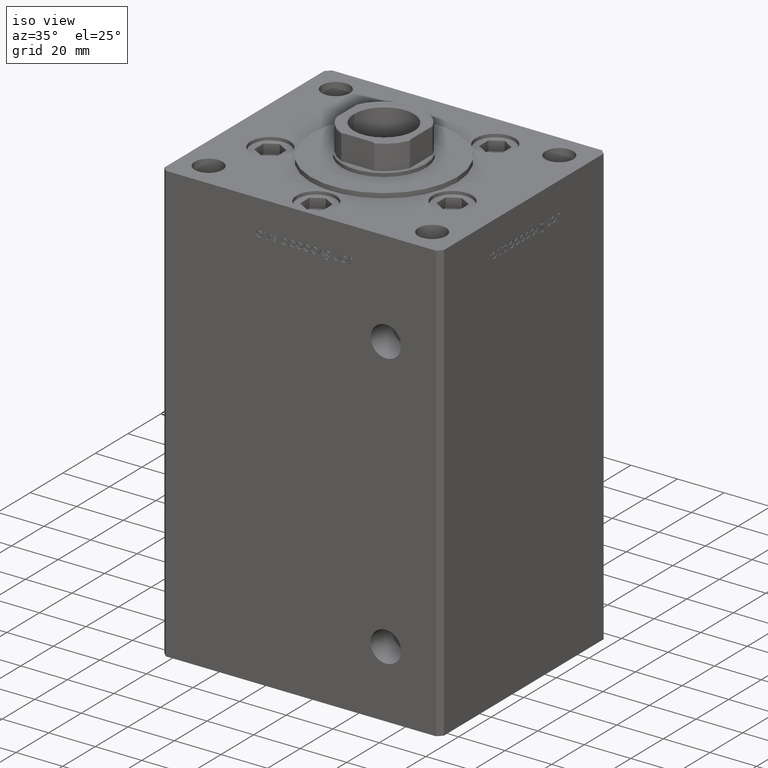
[diagram: clean part render]
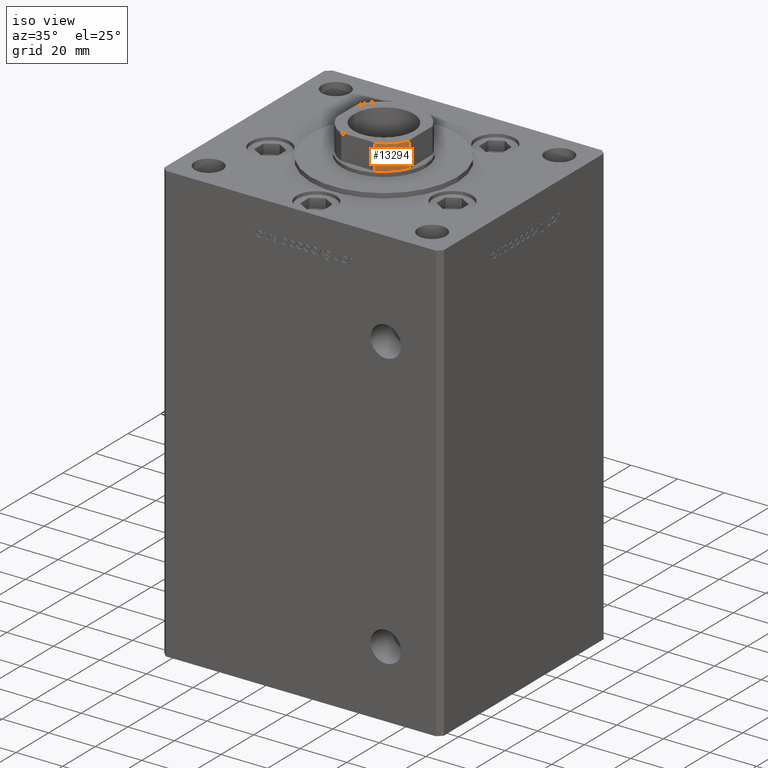
[diagram: same view with one face highlighted and labeled with its STEP entity id]
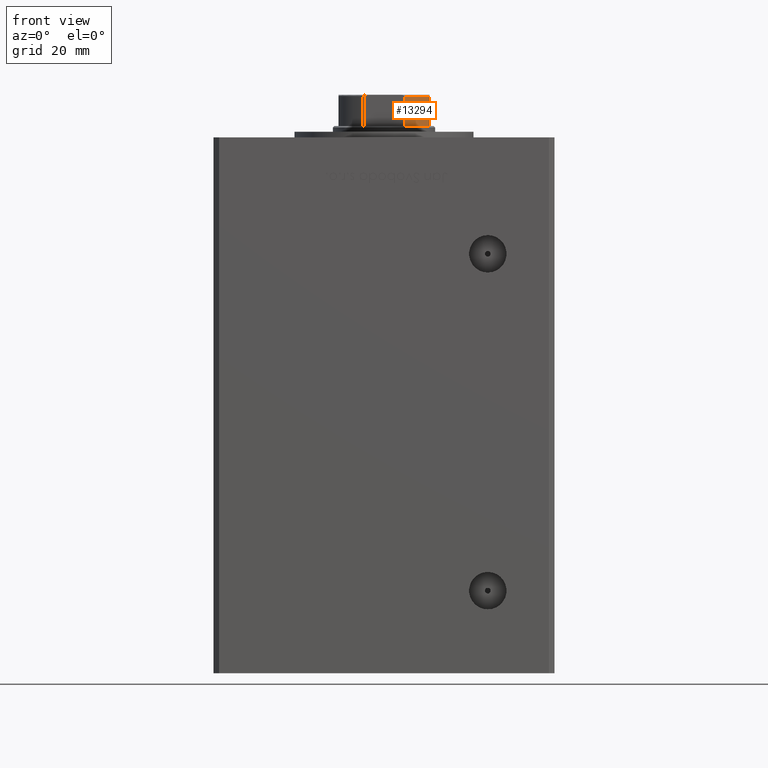
[diagram: same view with one face highlighted and labeled with its STEP entity id]
A machine part, iso view. The second image highlights one B-rep face of the part: STEP entity #13294.
A second angle (front view) of the same face is appended — the face is thin or edge-on in the first view.
In plain terms, the highlighted cylindrical surface (partial cylindrical patch) has radius 17.5 mm, axis along (0, 0, 1).
Its self-contained STEP definition (entity closure, byte-faithful):
#1170 = DIRECTION ( 'NONE',  ( 0.000000000000000000, 0.000000000000000000, 1.000000000000000000 ) ) ;
#1876 = EDGE_CURVE ( 'NONE', #32915, #11068, #38798, .T. ) ;
#5374 = CARTESIAN_POINT ( 'NONE',  ( 0.000000000000000000, 0.000000000000000000, 158.2500000000000000 ) ) ;
#5859 = EDGE_LOOP ( 'NONE', ( #18492, #7086, #45265, #18612 ) ) ;
#6065 = AXIS2_PLACEMENT_3D ( 'NONE', #8546, #28574, #24617 ) ;
#6157 = FACE_OUTER_BOUND ( 'NONE', #5859, .T. ) ;
#7086 = ORIENTED_EDGE ( 'NONE', *, *, #30544, .T. ) ;
#8546 = CARTESIAN_POINT ( 'NONE',  ( 0.000000000000000000, 0.000000000000000000, 168.7500000000000000 ) ) ;
#9168 = LINE ( 'NONE', #41584, #28890 ) ;
#10018 = AXIS2_PLACEMENT_3D ( 'NONE', #21451, #17735, #21693 ) ;
#10097 = CYLINDRICAL_SURFACE ( 'NONE', #10018, 17.50000000000000000 ) ;
#11068 = VERTEX_POINT ( 'NONE', #35508 ) ;
#11298 = CARTESIAN_POINT ( 'NONE',  ( 7.088723439378916247, -16.00000000000000000, 158.2500000000000284 ) ) ;
#11869 = AXIS2_PLACEMENT_3D ( 'NONE', #5374, #1170, #12484 ) ;
#12484 = DIRECTION ( 'NONE',  ( 1.000000000000000000, 0.000000000000000000, 0.000000000000000000 ) ) ;
#13294 = ADVANCED_FACE ( 'NONE', ( #6157 ), #10097, .T. ) ;
#13372 = VECTOR ( 'NONE', #15861, 1000.000000000000000 ) ;
#14851 = EDGE_CURVE ( 'NONE', #32915, #42422, #51990, .T. ) ;
#14926 = CARTESIAN_POINT ( 'NONE',  ( 7.088723439378916247, -16.00000000000000000, 168.7500000000000000 ) ) ;
#15861 = DIRECTION ( 'NONE',  ( -0.000000000000000000, -0.000000000000000000, 1.000000000000000000 ) ) ;
#17735 = DIRECTION ( 'NONE',  ( -0.000000000000000000, -0.000000000000000000, 1.000000000000000000 ) ) ;
#18492 = ORIENTED_EDGE ( 'NONE', *, *, #27235, .T. ) ;
#18612 = ORIENTED_EDGE ( 'NONE', *, *, #1876, .T. ) ;
#21451 = CARTESIAN_POINT ( 'NONE',  ( 0.000000000000000000, 0.000000000000000000, -0.001000000000001000089 ) ) ;
#21693 = DIRECTION ( 'NONE',  ( 1.000000000000000000, 0.000000000000000000, 0.000000000000000000 ) ) ;
#24617 = DIRECTION ( 'NONE',  ( 1.000000000000000000, 0.000000000000000000, 0.000000000000000000 ) ) ;
#27235 = EDGE_CURVE ( 'NONE', #11068, #51225, #9168, .T. ) ;
#28574 = DIRECTION ( 'NONE',  ( 0.000000000000000000, -0.000000000000000000, -1.000000000000000000 ) ) ;
#28890 = VECTOR ( 'NONE', #41322, 1000.000000000000000 ) ;
#30544 = EDGE_CURVE ( 'NONE', #51225, #42422, #51517, .T. ) ;
#32915 = VERTEX_POINT ( 'NONE', #11298 ) ;
#35508 = CARTESIAN_POINT ( 'NONE',  ( 15.99999999999999645, -7.088723439378925129, 158.2500000000000284 ) ) ;
#37131 = CARTESIAN_POINT ( 'NONE',  ( 15.99999999999999645, -7.088723439378925129, 168.7500000000000000 ) ) ;
#38798 = CIRCLE ( 'NONE', #11869, 17.50000000000001421 ) ;
#41322 = DIRECTION ( 'NONE',  ( -0.000000000000000000, -0.000000000000000000, 1.000000000000000000 ) ) ;
#41584 = CARTESIAN_POINT ( 'NONE',  ( 15.99999999999999645, -7.088723439378925129, -0.001000000000001000089 ) ) ;
#42422 = VERTEX_POINT ( 'NONE', #14926 ) ;
#45265 = ORIENTED_EDGE ( 'NONE', *, *, #14851, .F. ) ;
#48301 = CARTESIAN_POINT ( 'NONE',  ( 7.088723439378916247, -16.00000000000000000, -0.001000000000001000089 ) ) ;
#51225 = VERTEX_POINT ( 'NONE', #37131 ) ;
#51517 = CIRCLE ( 'NONE', #6065, 17.50000000000000000 ) ;
#51990 = LINE ( 'NONE', #48301, #13372 ) ;